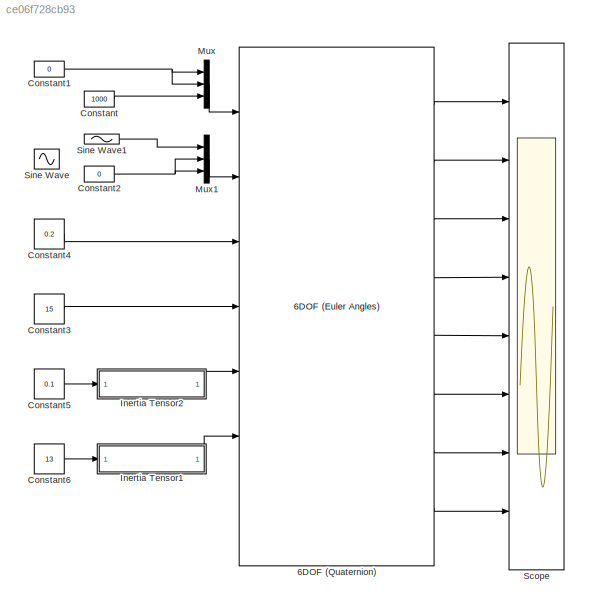
MODEL slx_ce06f728cb93
KIND model
BLOCK [Reference] 6DOF (Quaternion)  REF=aerolib6dof2/6DOF (Euler Angles)
  Ports = [7, 8]
  SourceBlock = aerolib6dof2/6DOF (Euler Angles)
  SourceType = 6DOF EoM (Body Axis)
  Vm_0 = [0 0 0]
  eul_0 = [0 0 0]
  inertia = eye(3)
  inertia_e = eye(3)
  inertia_f = 2*eye(3)
  k_quat = 1.0
  mass_0 = 1.0
  mass_e = 0.5
  mass_f = 2.0
  mtype = Custom Variable
  pm_0 = [0 0 0]
  rep = Quaternion
  units = Metric (MKS)
  vre_flag = on
  xme_0 = [0 0 0]
BLOCK [Constant] Constant
  Value = 1000
BLOCK [Constant] Constant1
  Value = 0
BLOCK [Constant] Constant2
  Value = 0
BLOCK [Constant] Constant3
  Value = 15
BLOCK [Constant] Constant4
  Value = 0.2
BLOCK [Constant] Constant5
  Value = 0.1
BLOCK [Constant] Constant6
  Value = 13
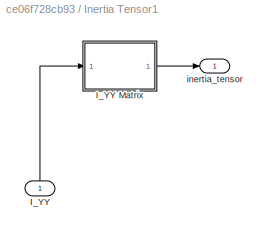
BLOCK [SubSystem] Inertia Tensor1
  Ports = [1, 1]
  RequestExecContextInheritance = off
BLOCK [Inport] Inertia Tensor1/I_YY
  IconDisplay = Port number
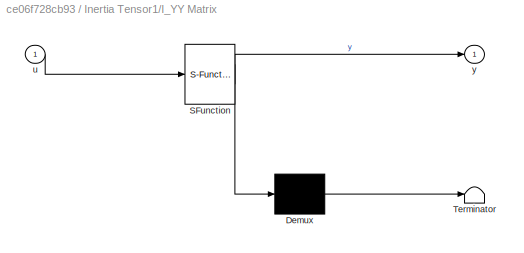
BLOCK [SubSystem] Inertia Tensor1/I_YY Matrix
  ErrorFcn = Stateflow.Translate.translate
  PermitHierarchicalResolution = ExplicitOnly
  Ports = [1, 1]
  RequestExecContextInheritance = off
  SFBlockType = MATLAB Function
  TreatAsAtomicUnit = on
BLOCK [Demux] Inertia Tensor1/I_YY Matrix/ Demux 
  Outputs = 1
  Ports = [1, 1]
BLOCK [S-Function] Inertia Tensor1/I_YY Matrix/ SFunction 
  EnableBusSupport = on
  FunctionName = sf_sfun
  PortCounts = [1 2]
  Ports = [1, 2]
  Tag = Stateflow S-Function Quaternion_TestModel 1
BLOCK [Terminator] Inertia Tensor1/I_YY Matrix/ Terminator 
BLOCK [Inport] Inertia Tensor1/I_YY Matrix/u
  IconDisplay = Port number
BLOCK [Outport] Inertia Tensor1/I_YY Matrix/y
  IconDisplay = Port number
BLOCK [Outport] Inertia Tensor1/inertia_tensor
  IconDisplay = Port number
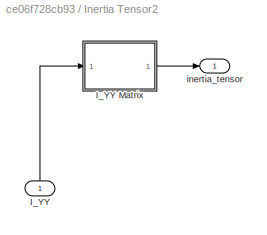
BLOCK [SubSystem] Inertia Tensor2
  Ports = [1, 1]
  RequestExecContextInheritance = off
BLOCK [Inport] Inertia Tensor2/I_YY
  IconDisplay = Port number
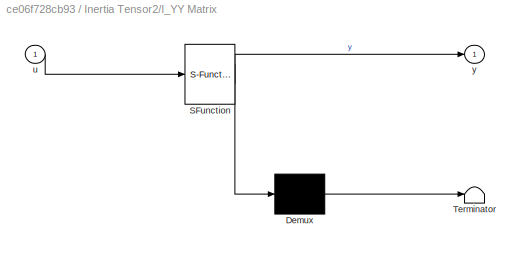
BLOCK [SubSystem] Inertia Tensor2/I_YY Matrix
  ErrorFcn = Stateflow.Translate.translate
  PermitHierarchicalResolution = ExplicitOnly
  Ports = [1, 1]
  RequestExecContextInheritance = off
  SFBlockType = MATLAB Function
  TreatAsAtomicUnit = on
BLOCK [Demux] Inertia Tensor2/I_YY Matrix/ Demux 
  Outputs = 1
  Ports = [1, 1]
BLOCK [S-Function] Inertia Tensor2/I_YY Matrix/ SFunction 
  EnableBusSupport = on
  FunctionName = sf_sfun
  PortCounts = [1 2]
  Ports = [1, 2]
  Tag = Stateflow S-Function Quaternion_TestModel 2
BLOCK [Terminator] Inertia Tensor2/I_YY Matrix/ Terminator 
BLOCK [Inport] Inertia Tensor2/I_YY Matrix/u
  IconDisplay = Port number
BLOCK [Outport] Inertia Tensor2/I_YY Matrix/y
  IconDisplay = Port number
BLOCK [Outport] Inertia Tensor2/inertia_tensor
  IconDisplay = Port number
BLOCK [Mux] Mux
  DisplayOption = bar
  Inputs = 3
  Ports = [3, 1]
BLOCK [Mux] Mux1
  DisplayOption = bar
  Inputs = 3
  Ports = [3, 1]
BLOCK [Scope] Scope
  DataFormat = StructureWithTime
  Floating = off
  NumInputPorts = 8
  Ports = [8]
  SampleTime = 0
  ShowLegends = off
  TimeRange = 1
  YMax = 1~1~1~1~1~1~1~1
  YMin = 0~0~0~0~0~0~0~0
BLOCK [Sin] Sine Wave
  Ports = [0, 1]
  SampleTime = 0
BLOCK [Sin] Sine Wave1
  Amplitude = 10
  Ports = [0, 1]
  SampleTime = 0
LINE 6DOF (Quaternion):1 -> Scope:1
LINE 6DOF (Quaternion):2 -> Scope:2
LINE 6DOF (Quaternion):3 -> Scope:3
LINE 6DOF (Quaternion):4 -> Scope:4
LINE 6DOF (Quaternion):5 -> Scope:5
LINE 6DOF (Quaternion):6 -> Scope:6
LINE 6DOF (Quaternion):7 -> Scope:7
LINE 6DOF (Quaternion):8 -> Scope:8
NET Constant1:1 -> Mux:1, Mux:2
NET Constant2:1 -> Mux1:2, Mux1:3
LINE Constant3:1 -> 6DOF (Quaternion):4
LINE Constant4:1 -> 6DOF (Quaternion):3
LINE Constant5:1 -> Inertia Tensor2:1
LINE Constant6:1 -> Inertia Tensor1:1
LINE Constant:1 -> Mux:3
LINE Inertia Tensor1/I_YY Matrix:1 -> Inertia Tensor1/inertia_tensor:1
LINE Inertia Tensor1/I_YY:1 -> Inertia Tensor1/I_YY Matrix:1
LINE Inertia Tensor1:1 -> 6DOF (Quaternion):6
LINE Inertia Tensor2/I_YY Matrix:1 -> Inertia Tensor2/inertia_tensor:1
LINE Inertia Tensor2/I_YY:1 -> Inertia Tensor2/I_YY Matrix:1
LINE Inertia Tensor2:1 -> 6DOF (Quaternion):5
LINE Mux1:1 -> 6DOF (Quaternion):2
LINE Mux:1 -> 6DOF (Quaternion):1
LINE Sine Wave1:1 -> Mux1:1
note: NET lines group one-source signal fan-out (src -> all destinations, sorted); 1:1 wires keep LINE
